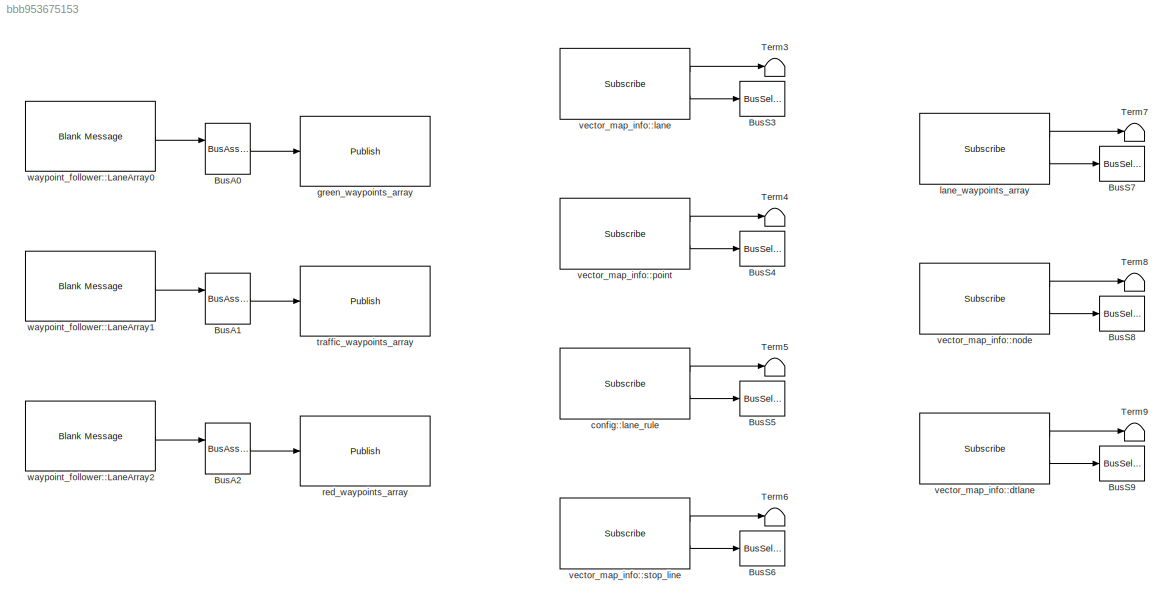
MODEL slx_bbb953675153
KIND model
CONFIG AbsTol = auto
CONFIG EnableMultiTasking = off
CONFIG FixedStep = auto
CONFIG MaxStep = auto
CONFIG MinStep = auto
CONFIG RelTol = 1e-3
CONFIG SampleTimeConstraint = Unconstrained
CONFIG Solver = VariableStepAuto
CONFIG SolverName = VariableStepAuto
CONFIG StartTime = 0.0
CONFIG StopTime = 10.0
BLOCK [BusAssignment] BusA0
  AssignedSignals = signal1
  Ports = [2, 1]
BLOCK [BusAssignment] BusA1
  AssignedSignals = signal1
  Ports = [2, 1]
BLOCK [BusAssignment] BusA2
  AssignedSignals = signal1
  Ports = [2, 1]
BLOCK [BusSelector] BusS3
  OutputSignals = signal1,signal2
  Ports = [1, 2]
BLOCK [BusSelector] BusS4
  OutputSignals = signal1,signal2
  Ports = [1, 2]
BLOCK [BusSelector] BusS5
  OutputSignals = signal1,signal2
  Ports = [1, 2]
BLOCK [BusSelector] BusS6
  OutputSignals = signal1,signal2
  Ports = [1, 2]
BLOCK [BusSelector] BusS7
  OutputSignals = signal1,signal2
  Ports = [1, 2]
BLOCK [BusSelector] BusS8
  OutputSignals = signal1,signal2
  Ports = [1, 2]
BLOCK [BusSelector] BusS9
  OutputSignals = signal1,signal2
  Ports = [1, 2]
BLOCK [Terminator] Term3
BLOCK [Terminator] Term4
BLOCK [Terminator] Term5
BLOCK [Terminator] Term6
BLOCK [Terminator] Term7
BLOCK [Terminator] Term8
BLOCK [Terminator] Term9
BLOCK [Reference] config::lane_rule  REF=robotlib/Subscribe
  Ports = [0, 2]
  SourceBlock = robotlib/Subscribe
  SourceLibraryInfo = This block requires Robotics System Toolbox
  SourceType = ROS Subscribe
BLOCK [Reference] green_waypoints_array  REF=robotlib/Publish
  Ports = [1]
  SourceBlock = robotlib/Publish
  SourceLibraryInfo = This block requires Robotics System Toolbox
  SourceType = ROS Publish
BLOCK [Reference] lane_waypoints_array  REF=robotlib/Subscribe
  Ports = [0, 2]
  SourceBlock = robotlib/Subscribe
  SourceLibraryInfo = This block requires Robotics System Toolbox
  SourceType = ROS Subscribe
BLOCK [Reference] red_waypoints_array  REF=robotlib/Publish
  Ports = [1]
  SourceBlock = robotlib/Publish
  SourceLibraryInfo = This block requires Robotics System Toolbox
  SourceType = ROS Publish
BLOCK [Reference] traffic_waypoints_array  REF=robotlib/Publish
  Ports = [1]
  SourceBlock = robotlib/Publish
  SourceLibraryInfo = This block requires Robotics System Toolbox
  SourceType = ROS Publish
BLOCK [Reference] vector_map_info::dtlane  REF=robotlib/Subscribe
  Ports = [0, 2]
  SourceBlock = robotlib/Subscribe
  SourceLibraryInfo = This block requires Robotics System Toolbox
  SourceType = ROS Subscribe
BLOCK [Reference] vector_map_info::lane  REF=robotlib/Subscribe
  Ports = [0, 2]
  SourceBlock = robotlib/Subscribe
  SourceLibraryInfo = This block requires Robotics System Toolbox
  SourceType = ROS Subscribe
BLOCK [Reference] vector_map_info::node  REF=robotlib/Subscribe
  Ports = [0, 2]
  SourceBlock = robotlib/Subscribe
  SourceLibraryInfo = This block requires Robotics System Toolbox
  SourceType = ROS Subscribe
BLOCK [Reference] vector_map_info::point  REF=robotlib/Subscribe
  Ports = [0, 2]
  SourceBlock = robotlib/Subscribe
  SourceLibraryInfo = This block requires Robotics System Toolbox
  SourceType = ROS Subscribe
BLOCK [Reference] vector_map_info::stop_line  REF=robotlib/Subscribe
  Ports = [0, 2]
  SourceBlock = robotlib/Subscribe
  SourceLibraryInfo = This block requires Robotics System Toolbox
  SourceType = ROS Subscribe
BLOCK [Reference] waypoint_follower::LaneArray0  REF=robotlib/Blank Message
  Ports = [0, 1]
  SourceBlock = robotlib/Blank Message
  SourceLibraryInfo = This block requires Robotics System Toolbox
  SourceType = ROS Blank Message
BLOCK [Reference] waypoint_follower::LaneArray1  REF=robotlib/Blank Message
  Ports = [0, 1]
  SourceBlock = robotlib/Blank Message
  SourceLibraryInfo = This block requires Robotics System Toolbox
  SourceType = ROS Blank Message
BLOCK [Reference] waypoint_follower::LaneArray2  REF=robotlib/Blank Message
  Ports = [0, 1]
  SourceBlock = robotlib/Blank Message
  SourceLibraryInfo = This block requires Robotics System Toolbox
  SourceType = ROS Blank Message
LINE BusA0:1 -> green_waypoints_array:1
LINE BusA1:1 -> traffic_waypoints_array:1
LINE BusA2:1 -> red_waypoints_array:1
LINE config::lane_rule:1 -> Term5:1
LINE config::lane_rule:2 -> BusS5:1
LINE lane_waypoints_array:1 -> Term7:1
LINE lane_waypoints_array:2 -> BusS7:1
LINE vector_map_info::dtlane:1 -> Term9:1
LINE vector_map_info::dtlane:2 -> BusS9:1
LINE vector_map_info::lane:1 -> Term3:1
LINE vector_map_info::lane:2 -> BusS3:1
LINE vector_map_info::node:1 -> Term8:1
LINE vector_map_info::node:2 -> BusS8:1
LINE vector_map_info::point:1 -> Term4:1
LINE vector_map_info::point:2 -> BusS4:1
LINE vector_map_info::stop_line:1 -> Term6:1
LINE vector_map_info::stop_line:2 -> BusS6:1
LINE waypoint_follower::LaneArray0:1 -> BusA0:1
LINE waypoint_follower::LaneArray1:1 -> BusA1:1
LINE waypoint_follower::LaneArray2:1 -> BusA2:1
